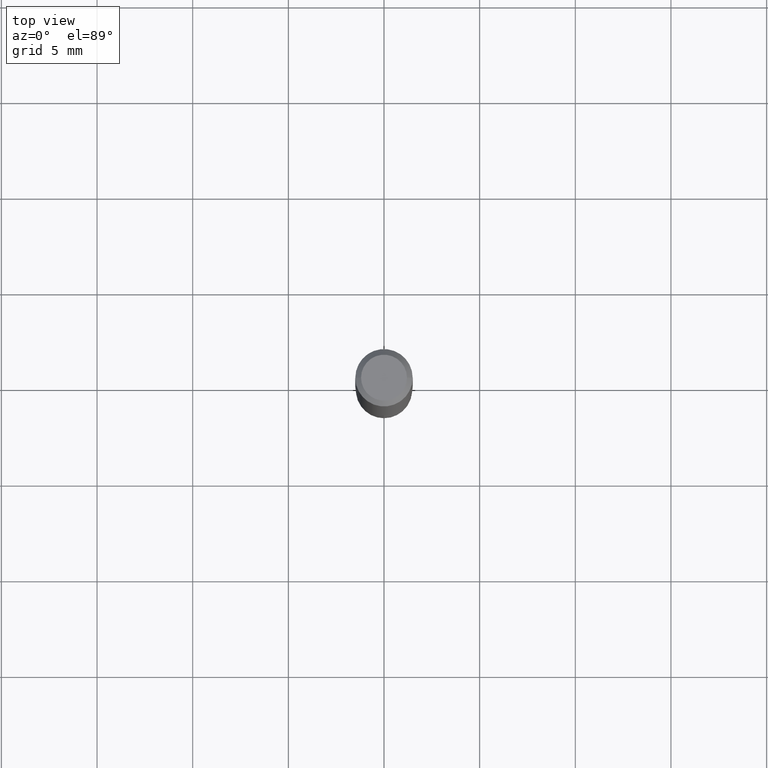
[diagram: clean part render]
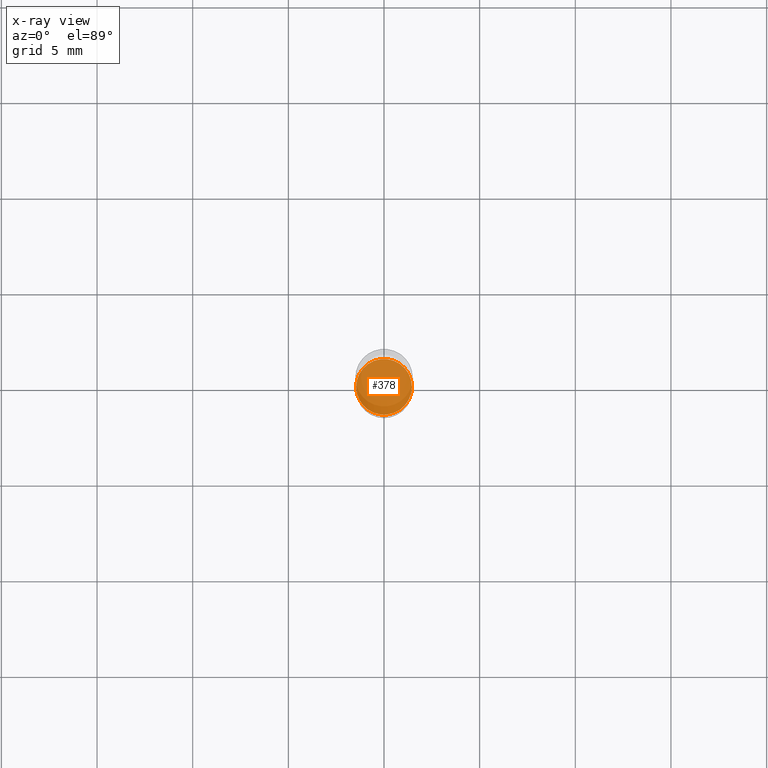
[diagram: x-ray — body ghosted, one internal face saturated and labeled with its STEP entity id]
A machine part, top view, then the same camera in x-ray: the body is ghosted and one INTERNAL B-rep face — a face not visible from any outside direction — is saturated and labeled: STEP entity #378.
In plain terms, the highlighted planar face has unit normal (-0, 0, 1).
Its self-contained STEP definition (entity closure, byte-faithful):
#10 = VERTEX_POINT ( 'NONE', #389 ) ;
#61 = CARTESIAN_POINT ( 'NONE',  ( 2.676565608369632355E-29, -3.821426325363822773E-15, -1.094500000000000028 ) ) ;
#91 = DIRECTION ( 'NONE',  ( -2.445468806185136597E-29, 3.491481338843145583E-15, 1.000000000000000000 ) ) ;
#94 = EDGE_CURVE ( 'NONE', #281, #10, #134, .T. ) ;
#103 = DIRECTION ( 'NONE',  ( -2.438088387897960049E-29, 3.491481338843145188E-15, 1.000000000000000000 ) ) ;
#107 = DIRECTION ( 'NONE',  ( 1.000000000000000000, -6.982962677686265922E-15, 4.876176775795935793E-29 ) ) ;
#134 = CIRCLE ( 'NONE', #471, 0.05734999999999999820 ) ;
#135 = AXIS2_PLACEMENT_3D ( 'NONE', #283, #91, #279 ) ;
#144 = CARTESIAN_POINT ( 'NONE',  ( 8.562420094366031687E-30, -6.428233325420959968E-15, -1.094500000000000028 ) ) ;
#146 = CIRCLE ( 'NONE', #135, 0.05734999999999999820 ) ;
#279 = DIRECTION ( 'NONE',  ( 1.000000000000000000, -6.982962677686264344E-15, 0.000000000000000000 ) ) ;
#281 = VERTEX_POINT ( 'NONE', #456 ) ;
#283 = CARTESIAN_POINT ( 'NONE',  ( 2.676565608369632355E-29, -3.821426325363822773E-15, -1.094500000000000028 ) ) ;
#299 = PLANE ( 'NONE',  #303 ) ;
#303 = AXIS2_PLACEMENT_3D ( 'NONE', #144, #103, #107 ) ;
#307 = ORIENTED_EDGE ( 'NONE', *, *, #94, .F. ) ;
#361 = DIRECTION ( 'NONE',  ( 1.000000000000000000, -6.982962677686264344E-15, 0.000000000000000000 ) ) ;
#364 = DIRECTION ( 'NONE',  ( -2.445468806185136597E-29, 3.491481338843145583E-15, 1.000000000000000000 ) ) ;
#378 = ADVANCED_FACE ( 'NONE', ( #479 ), #299, .F. ) ;
#389 = CARTESIAN_POINT ( 'NONE',  ( -0.05734999999999999820, -3.411280839231294424E-15, -1.094500000000000028 ) ) ;
#428 = ORIENTED_EDGE ( 'NONE', *, *, #466, .F. ) ;
#447 = EDGE_LOOP ( 'NONE', ( #307, #428 ) ) ;
#456 = CARTESIAN_POINT ( 'NONE',  ( 0.05734999999999999820, -4.221899234929130680E-15, -1.094500000000000028 ) ) ;
#466 = EDGE_CURVE ( 'NONE', #10, #281, #146, .T. ) ;
#471 = AXIS2_PLACEMENT_3D ( 'NONE', #61, #364, #361 ) ;
#479 = FACE_OUTER_BOUND ( 'NONE', #447, .T. ) ;